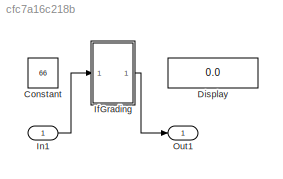
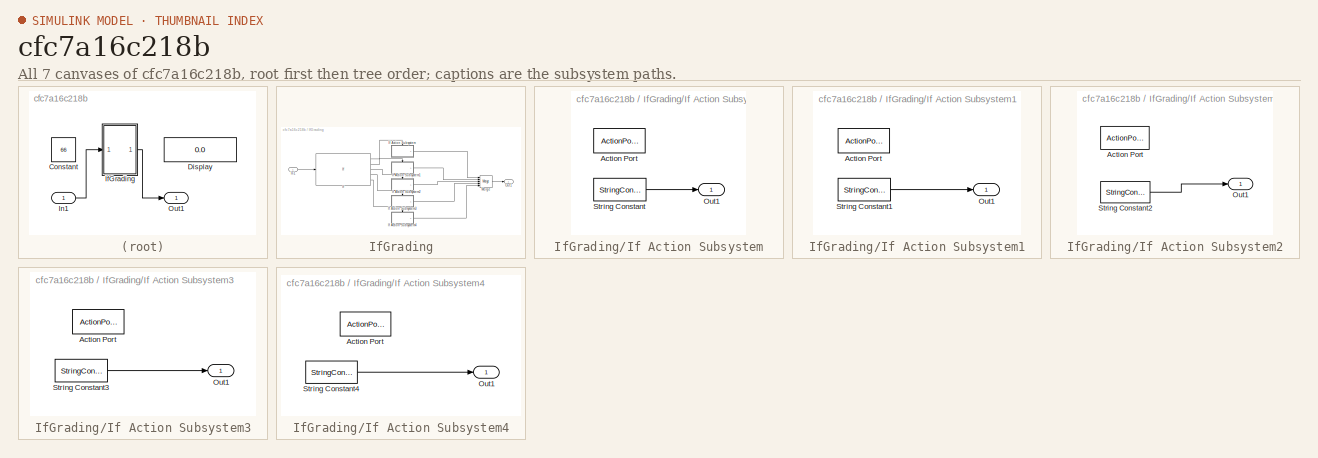
[diagram: thumbnail index - all 7 canvases of the model, root first then tree order]
MODEL slx_cfc7a16c218b
KIND model
CONFIG AbsTol = auto
CONFIG EnableMultiTasking = off
CONFIG FixedStep = auto
CONFIG MaxStep = auto
CONFIG MinStep = auto
CONFIG RelTol = 1e-3
CONFIG SampleTimeConstraint = Unconstrained
CONFIG SolverName = FixedStepDiscrete
CONFIG StartTime = 0.0
CONFIG StopTime = 10.0
BLOCK [Constant] Constant
  Value = 66
BLOCK [Display] Display
  Decimation = 1
  Ports = [1]
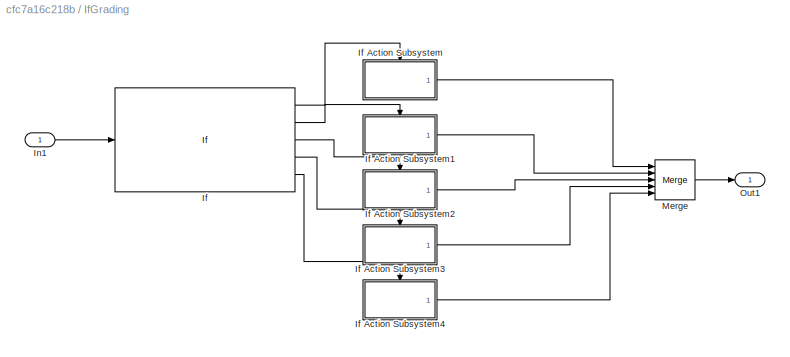
BLOCK [SubSystem] IfGrading
  Ports = [1, 1]
  RequestExecContextInheritance = off
BLOCK [If] IfGrading/If
  ElseIfExpressions = (u1 >= 50) & (u1 < 65), (u1 >= 65) & (u1 < 75) ,(u1 >= 75) & (u1 < 85) , (u1 >= 85) & (u1 <= 100)
  IfExpression = (u1 >= 0 )&( u1 < 50)
  Ports = [1, 5]
  ShowElse = off
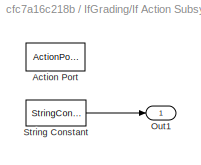
BLOCK [SubSystem] IfGrading/If Action Subsystem
  Ports = [0, 1, 0, 0, 0, 0, 0, 1]
  RequestExecContextInheritance = off
  TreatAsAtomicUnit = on
BLOCK [ActionPort] IfGrading/If Action Subsystem/Action Port
  ActionPortLabel = if((u1 >= 0 )&( u1 < 50))
BLOCK [Outport] IfGrading/If Action Subsystem/Out1
BLOCK [StringConstant] IfGrading/If Action Subsystem/String Constant
  String = "Fail"
BLOCK [SubSystem] IfGrading/If Action Subsystem1
  Ports = [0, 1, 0, 0, 0, 0, 0, 1]
  RequestExecContextInheritance = off
  TreatAsAtomicUnit = on
BLOCK [ActionPort] IfGrading/If Action Subsystem1/Action Port
  ActionPortLabel = elseif((u1 >= 50) & (u1 < 65))
BLOCK [Outport] IfGrading/If Action Subsystem1/Out1
BLOCK [StringConstant] IfGrading/If Action Subsystem1/String Constant1
  String = "Pass"
BLOCK [SubSystem] IfGrading/If Action Subsystem2
  Ports = [0, 1, 0, 0, 0, 0, 0, 1]
  RequestExecContextInheritance = off
  TreatAsAtomicUnit = on
BLOCK [ActionPort] IfGrading/If Action Subsystem2/Action Port
  ActionPortLabel = elseif( (u1 >= 65) & (u1 < 75) )
BLOCK [Outport] IfGrading/If Action Subsystem2/Out1
BLOCK [StringConstant] IfGrading/If Action Subsystem2/String Constant2
  String = "Good"
BLOCK [SubSystem] IfGrading/If Action Subsystem3
  Ports = [0, 1, 0, 0, 0, 0, 0, 1]
  RequestExecContextInheritance = off
  TreatAsAtomicUnit = on
BLOCK [ActionPort] IfGrading/If Action Subsystem3/Action Port
  ActionPortLabel = elseif((u1 >= 75) & (u1 < 85) )
BLOCK [Outport] IfGrading/If Action Subsystem3/Out1
BLOCK [StringConstant] IfGrading/If Action Subsystem3/String Constant3
  String = "Very Good"
BLOCK [SubSystem] IfGrading/If Action Subsystem4
  Ports = [0, 1, 0, 0, 0, 0, 0, 1]
  RequestExecContextInheritance = off
  TreatAsAtomicUnit = on
BLOCK [ActionPort] IfGrading/If Action Subsystem4/Action Port
  ActionPortLabel = elseif( (u1 >= 85) & (u1 <= 100))
BLOCK [Outport] IfGrading/If Action Subsystem4/Out1
BLOCK [StringConstant] IfGrading/If Action Subsystem4/String Constant4
  String = "Excellent"
BLOCK [Inport] IfGrading/In1
BLOCK [Merge] IfGrading/Merge
  Inputs = 5
  Ports = [5, 1]
BLOCK [Outport] IfGrading/Out1
BLOCK [Inport] In1
BLOCK [Outport] Out1
LINE IfGrading/If Action Subsystem/String Constant:1 -> IfGrading/If Action Subsystem/Out1:1
LINE IfGrading/If Action Subsystem1/String Constant1:1 -> IfGrading/If Action Subsystem1/Out1:1
LINE IfGrading/If Action Subsystem1:1 -> IfGrading/Merge:2
LINE IfGrading/If Action Subsystem2/String Constant2:1 -> IfGrading/If Action Subsystem2/Out1:1
LINE IfGrading/If Action Subsystem2:1 -> IfGrading/Merge:3
LINE IfGrading/If Action Subsystem3/String Constant3:1 -> IfGrading/If Action Subsystem3/Out1:1
LINE IfGrading/If Action Subsystem3:1 -> IfGrading/Merge:4
LINE IfGrading/If Action Subsystem4/String Constant4:1 -> IfGrading/If Action Subsystem4/Out1:1
LINE IfGrading/If Action Subsystem4:1 -> IfGrading/Merge:5
LINE IfGrading/If Action Subsystem:1 -> IfGrading/Merge:1
LINE IfGrading/If:1 -> IfGrading/If Action Subsystem:ifaction
LINE IfGrading/If:2 -> IfGrading/If Action Subsystem1:ifaction
LINE IfGrading/If:3 -> IfGrading/If Action Subsystem2:ifaction
LINE IfGrading/If:4 -> IfGrading/If Action Subsystem3:ifaction
LINE IfGrading/If:5 -> IfGrading/If Action Subsystem4:ifaction
LINE IfGrading/In1:1 -> IfGrading/If:1
LINE IfGrading/Merge:1 -> IfGrading/Out1:1
LINE IfGrading:1 -> Out1:1
LINE In1:1 -> IfGrading:1
